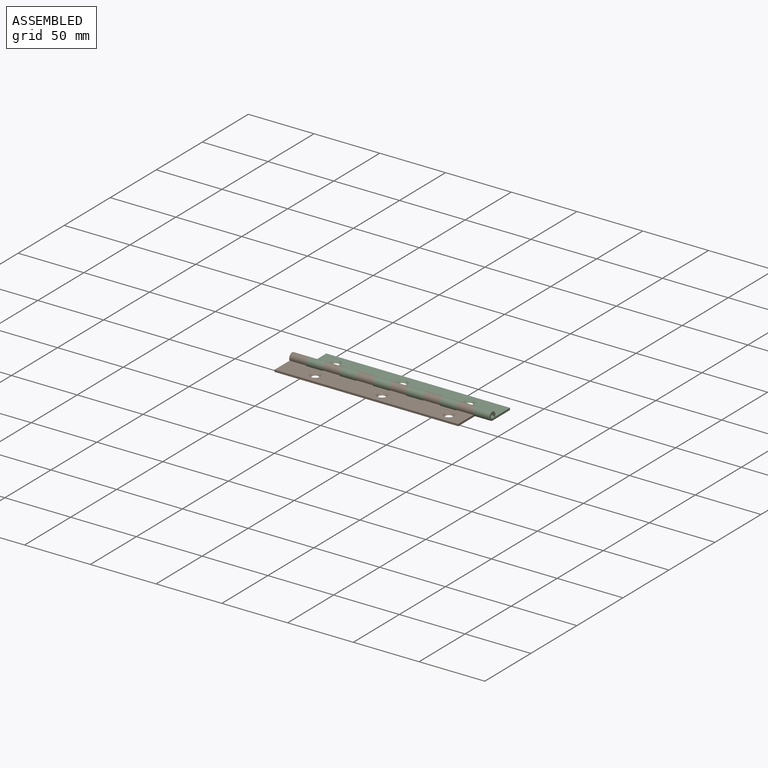
[diagram: assembled view]
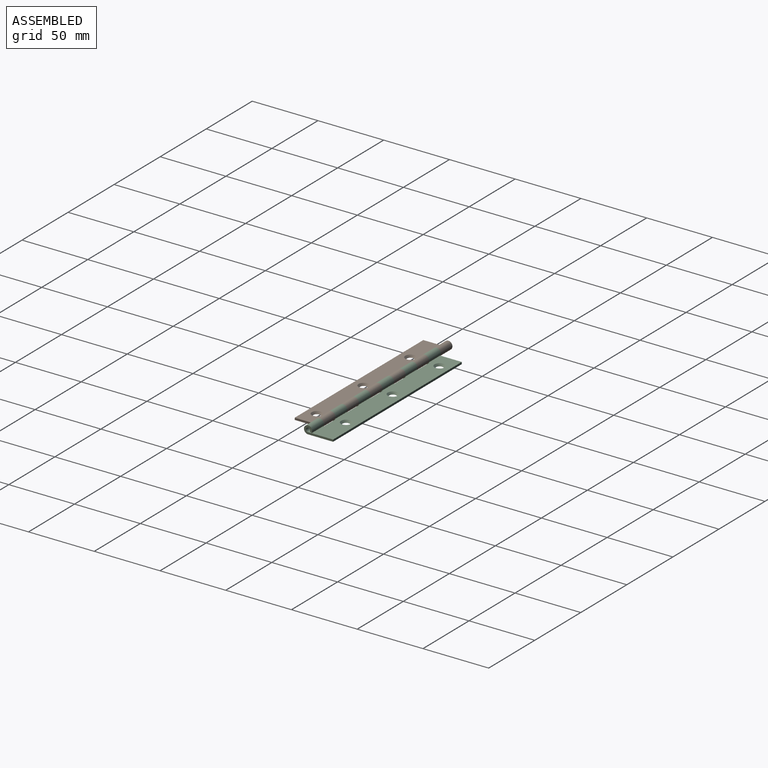
[diagram: assembled view, second angle]
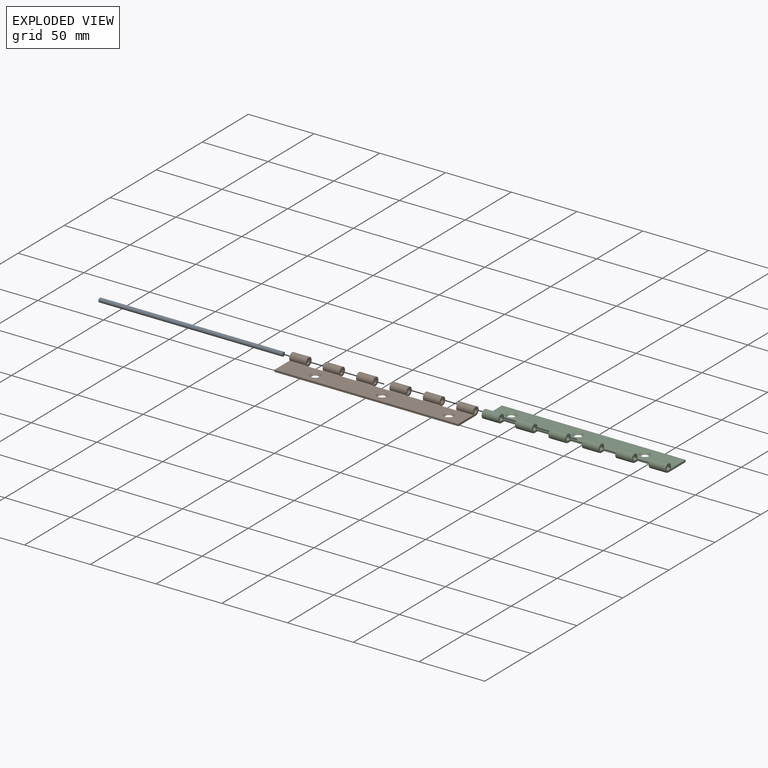
[diagram: exploded view]
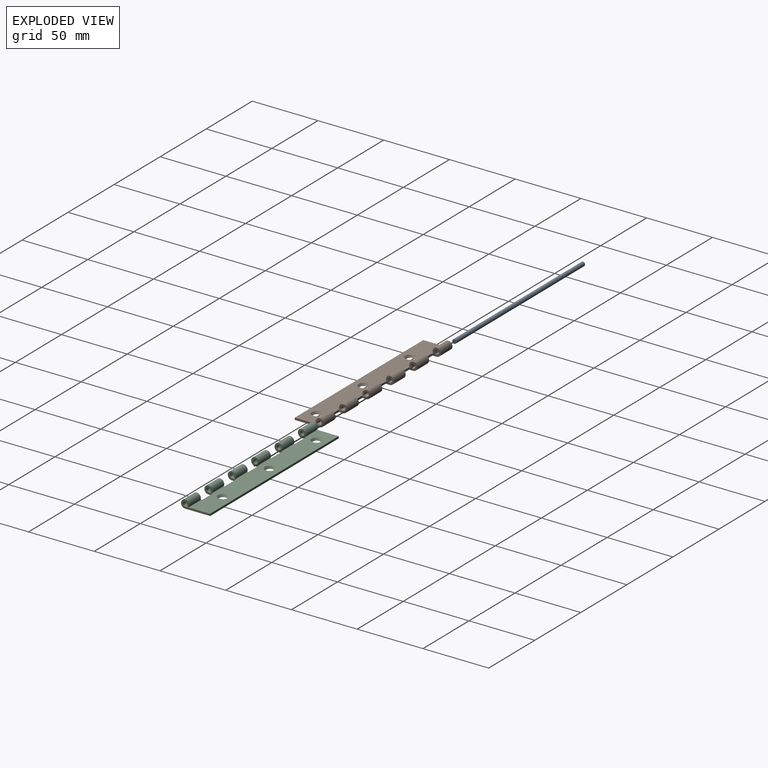
[diagram: exploded view, second angle]
ASSEMBLY  parts=3 mates=2
PART A: 3 faces, bbox 139.7x3.2x3.2 mm
  f0: plane 3.18x3.18mm, normal (1,0,0), area 7.9mm2, adj f1
  f1: cylinder r=1.59mm len=139.7mm, axis (-1,0,0), area 1393.4mm2, adj f0,f2
  f2: plane 3.18x3.18mm, normal (-1,0,0), area 7.9mm2, adj f1
PART B: 41 faces, bbox 139.7x22.2x6.2 mm
  f0: cylinder r=1.59mm len=12.7mm, axis (-1,0,0), area 105.5mm2, adj f10,f16,f33,f37
  f1: cylinder r=1.59mm len=12.7mm, axis (-1,0,0), area 105.5mm2, adj f11,f16,f30,f34
  f2: cylinder r=1.59mm len=12.7mm, axis (-1,0,0), area 105.5mm2, adj f12,f16,f27,f31
  f3: cylinder r=1.59mm len=12.7mm, axis (-1,0,0), area 105.5mm2, adj f13,f16,f24,f28
  f4: cylinder r=1.59mm len=12.7mm, axis (-1,0,0), area 105.5mm2, adj f14,f16,f21,f25
  f5: cylinder r=3.11mm len=12.7mm, axis (-1,0,0), area 206.7mm2, adj f10,f18,f33,f37
  f6: cylinder r=3.11mm len=12.7mm, axis (-1,0,0), area 206.7mm2, adj f11,f18,f30,f34
  f7: cylinder r=3.11mm len=12.7mm, axis (-1,0,0), area 206.7mm2, adj f12,f18,f27,f31
  f8: cylinder r=3.11mm len=12.7mm, axis (-1,0,0), area 206.7mm2, adj f13,f18,f24,f28
  f9: cylinder r=3.11mm len=12.7mm, axis (-1,0,0), area 206.7mm2, adj f14,f18,f21,f25
  f10: plane 12.7x1.32mm, normal (0,0.5,-0.87), area 19.4mm2, adj f0,f5,f33,f37
  f11: plane 12.7x1.32mm, normal (0,0.5,-0.87), area 19.4mm2, adj f1,f6,f30,f34
  f12: plane 12.7x1.32mm, normal (0,0.5,-0.87), area 19.4mm2, adj f2,f7,f27,f31
  f13: plane 12.7x1.32mm, normal (0,0.5,-0.87), area 19.4mm2, adj f3,f8,f24,f28
  f14: plane 12.7x1.32mm, normal (0,0.5,-0.87), area 19.4mm2, adj f4,f9,f21,f25
  f15: cylinder r=1.59mm len=12.7mm, axis (-1,0,0), area 105.5mm2, adj f16,f20,f22,f36
  f16: plane 139.7x19.05mm, normal (0,0,1), area 2312.4mm2, adj f0,f1,f2,f3,f4,f15,f17,f21
  f17: plane 139.7x1.52mm, normal (0,-1,0), area 212.9mm2, adj f16,f18,f21,f22
  f18: plane 139.7x19.05mm, normal (0,0,-1), area 2393.2mm2, adj f5,f6,f7,f8,f9,f17,f19,f21
  f19: cylinder r=3.11mm len=12.7mm, axis (-1,0,0), area 206.7mm2, adj f18,f20,f22,f36
  f20: plane 12.7x1.32mm, normal (0,0.5,-0.87), area 19.4mm2, adj f15,f19,f22,f36
  f21: plane 22.16x6.22mm, normal (1,0,0), area 47.8mm2, adj f4,f9,f14,f16,f17,f18
  f22: plane 22.16x6.22mm, normal (-1,0,0), area 47.8mm2, adj f15,f16,f17,f18,f19,f20
  f23: plane 12.7x1.52mm, normal (0,1,0), area 19.4mm2, adj f16,f18,f24,f25
  f24: plane 6.35x6.22mm, normal (1,0,0), area 23.7mm2, adj f3,f8,f13,f16,f18,f23
  f25: plane 6.35x6.22mm, normal (-1,0,0), area 23.7mm2, adj f4,f9,f14,f16,f18,f23
  f26: plane 12.7x1.52mm, normal (0,1,0), area 19.4mm2, adj f16,f18,f27,f28
  f27: plane 6.35x6.22mm, normal (1,0,0), area 23.7mm2, adj f2,f7,f12,f16,f18,f26
  f28: plane 6.35x6.22mm, normal (-1,0,0), area 23.7mm2, adj f3,f8,f13,f16,f18,f26
  f29: plane 12.7x1.52mm, normal (0,1,0), area 19.4mm2, adj f16,f18,f30,f31
  f30: plane 6.35x6.22mm, normal (1,0,0), area 23.7mm2, adj f1,f6,f11,f16,f18,f29
  f31: plane 6.35x6.22mm, normal (-1,0,0), area 23.7mm2, adj f2,f7,f12,f16,f18,f29
  f32: plane 12.7x1.52mm, normal (0,1,0), area 19.4mm2, adj f16,f18,f33,f34
  f33: plane 6.35x6.22mm, normal (1,0,0), area 23.7mm2, adj f0,f5,f10,f16,f18,f32
  f34: plane 6.35x6.22mm, normal (-1,0,0), area 23.7mm2, adj f1,f6,f11,f16,f18,f32
  f35: plane 12.7x1.52mm, normal (0,1,0), area 19.4mm2, adj f16,f18,f36,f37
  f36: plane 6.35x6.22mm, normal (1,0,0), area 23.7mm2, adj f15,f16,f18,f19,f20,f35
  f37: plane 6.35x6.22mm, normal (-1,0,0), area 23.7mm2, adj f0,f5,f10,f16,f18,f35
  f38: cone r=1.83mm half-angle=41deg, axis (0,0,1), area 41.1mm2, adj f16,f18
  f39: cone r=1.83mm half-angle=41deg, axis (0,0,1), area 41.1mm2, adj f16,f18
  f40: cone r=1.83mm half-angle=41deg, axis (0,0,1), area 41.1mm2, adj f16,f18
PART C: same geometry as B
PLACE A t=(-915.84,463.17,-6.74)mm
PLACE B t=(-915.84,463.17,-6.74)mm fixed
PLACE C rot(axis=(0,0,-1),180deg) t=(-763.44,463.17,-6.74)mm
MATE fastened A.f1 <-> B.f0  axis (-1,0,0) through (-915.84,463.17,-6.74)mm
MATE revolute B.f5 <-> C.f5  axis (-1,0,0) through (-890.44,463.17,-6.74)mm
